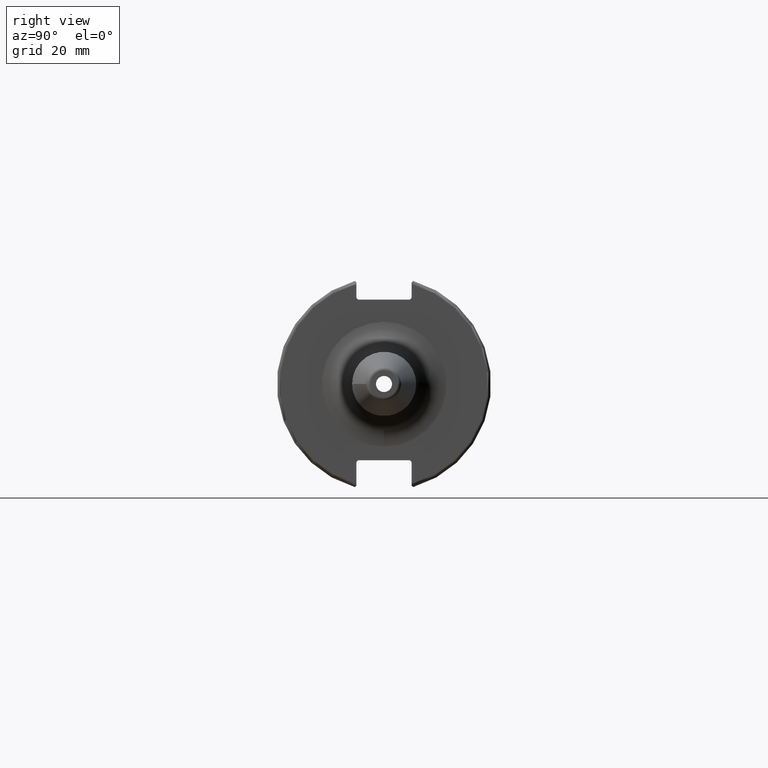
[diagram: clean part render]
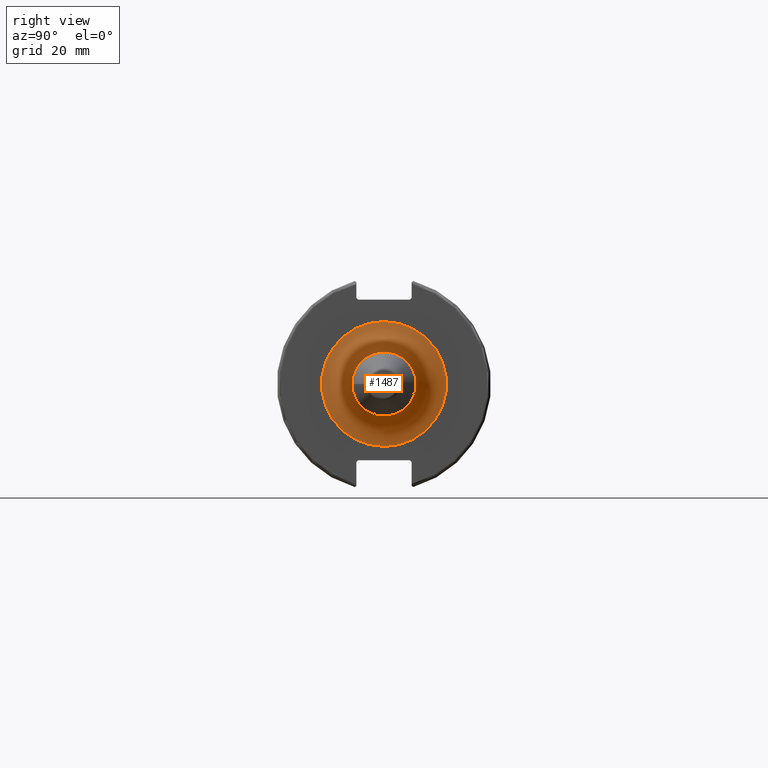
[diagram: same view with one face highlighted and labeled with its STEP entity id]
A machine part, right view. The second image highlights one B-rep face of the part: STEP entity #1487.
In plain terms, the highlighted toroidal blend (fillet) surface has major radius 18.5 mm and minor (blend) radius 9 mm.
Its self-contained STEP definition (entity closure, byte-faithful):
#367=FACE_OUTER_BOUND('',#455,.T.);
#455=EDGE_LOOP('',(#1022,#1023,#1024,#1025,#1026));
#558=CIRCLE('',#1604,9.5);
#559=CIRCLE('',#1605,9.);
#560=CIRCLE('',#1606,18.5);
#561=CIRCLE('',#1607,9.5);
#630=VERTEX_POINT('',#2243);
#631=VERTEX_POINT('',#2244);
#632=VERTEX_POINT('',#2246);
#784=EDGE_CURVE('',#630,#631,#558,.T.);
#785=EDGE_CURVE('',#631,#632,#559,.T.);
#786=EDGE_CURVE('',#632,#632,#560,.T.);
#787=EDGE_CURVE('',#631,#630,#561,.T.);
#1022=ORIENTED_EDGE('',*,*,#784,.T.);
#1023=ORIENTED_EDGE('',*,*,#785,.T.);
#1024=ORIENTED_EDGE('',*,*,#786,.T.);
#1025=ORIENTED_EDGE('',*,*,#785,.F.);
#1026=ORIENTED_EDGE('',*,*,#787,.T.);
#1477=TOROIDAL_SURFACE('',#1603,18.5,9.);
#1487=ADVANCED_FACE('',(#367),#1477,.F.);
#1603=AXIS2_PLACEMENT_3D('',#2242,#1793,#1794);
#1604=AXIS2_PLACEMENT_3D('',#2245,#1795,#1796);
#1605=AXIS2_PLACEMENT_3D('',#2247,#1797,#1798);
#1606=AXIS2_PLACEMENT_3D('',#2248,#1799,#1800);
#1607=AXIS2_PLACEMENT_3D('',#2249,#1801,#1802);
#1793=DIRECTION('center_axis',(-1.,0.,0.));
#1794=DIRECTION('ref_axis',(0.,0.,1.));
#1795=DIRECTION('center_axis',(-1.,0.,0.));
#1796=DIRECTION('ref_axis',(0.,-1.,-1.22464679914735E-16));
#1797=DIRECTION('center_axis',(0.,-1.,1.22464679914735E-16));
#1798=DIRECTION('ref_axis',(0.,-1.22464679914735E-16,-1.));
#1799=DIRECTION('center_axis',(1.,0.,0.));
#1800=DIRECTION('ref_axis',(0.,-1.,-1.22464679914735E-16));
#1801=DIRECTION('center_axis',(-1.,0.,0.));
#1802=DIRECTION('ref_axis',(0.,-1.,-1.22464679914735E-16));
#2242=CARTESIAN_POINT('Origin',(28.05,0.,0.));
#2243=CARTESIAN_POINT('',(28.05,-9.5,-1.16341445918999E-15));
#2244=CARTESIAN_POINT('',(28.05,-1.16341445918999E-15,-9.5));
#2245=CARTESIAN_POINT('Origin',(28.05,0.,0.));
#2246=CARTESIAN_POINT('',(19.05,-2.2655965784226E-15,-18.5));
#2247=CARTESIAN_POINT('Origin',(28.05,-2.2655965784226E-15,-18.5));
#2248=CARTESIAN_POINT('Origin',(19.05,0.,0.));
#2249=CARTESIAN_POINT('Origin',(28.05,0.,0.));